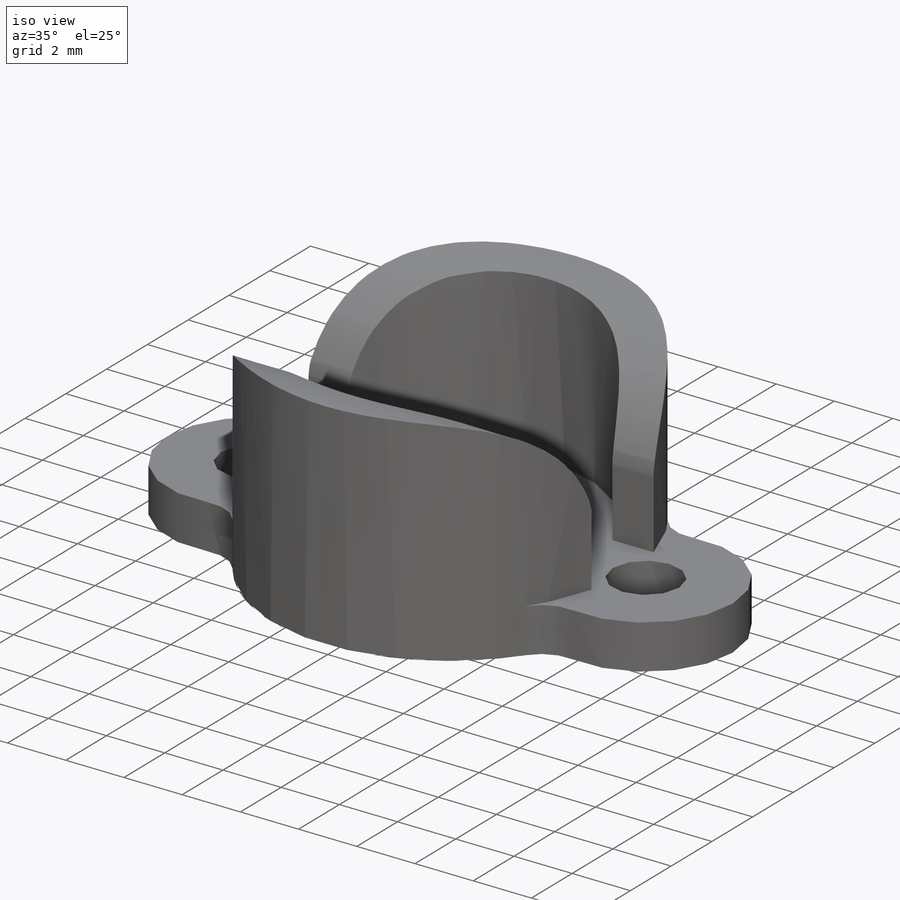
[diagram: iso view]
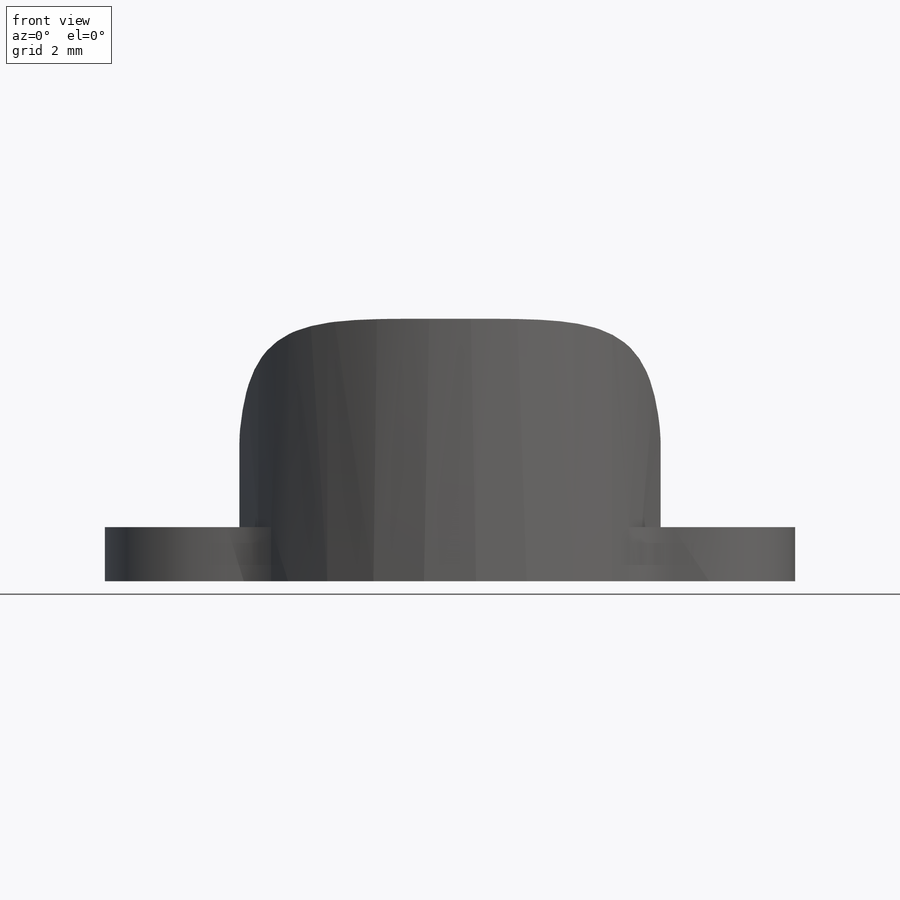
[diagram: front view]
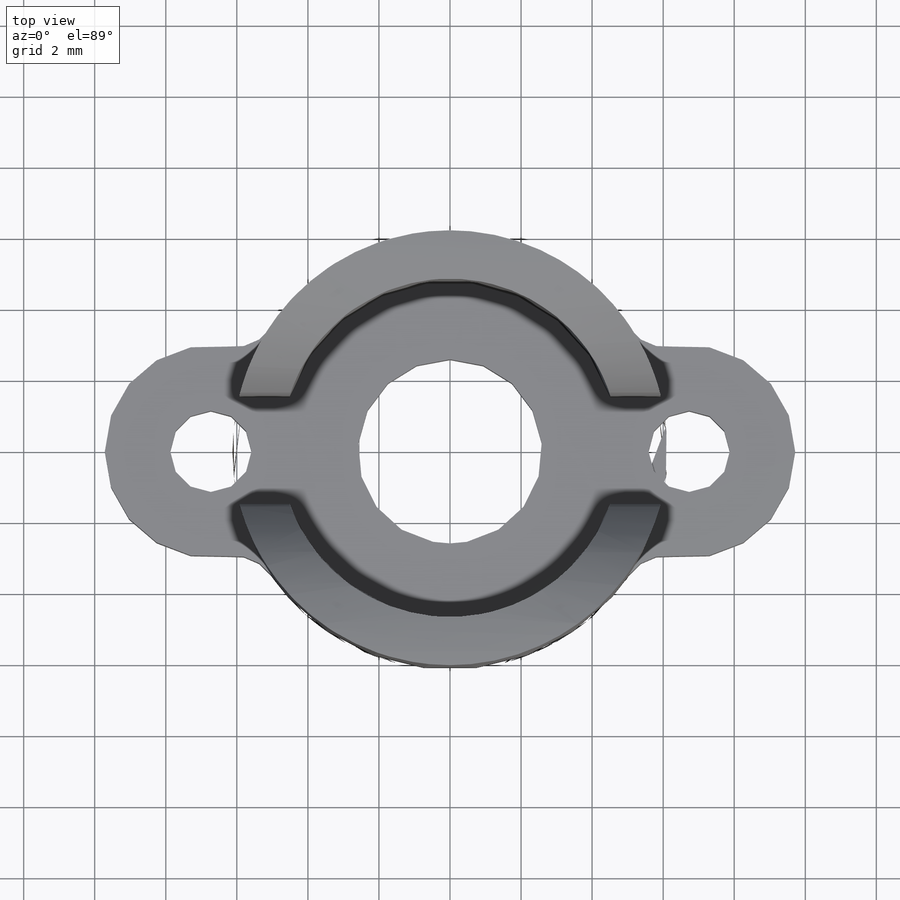
[diagram: top view]
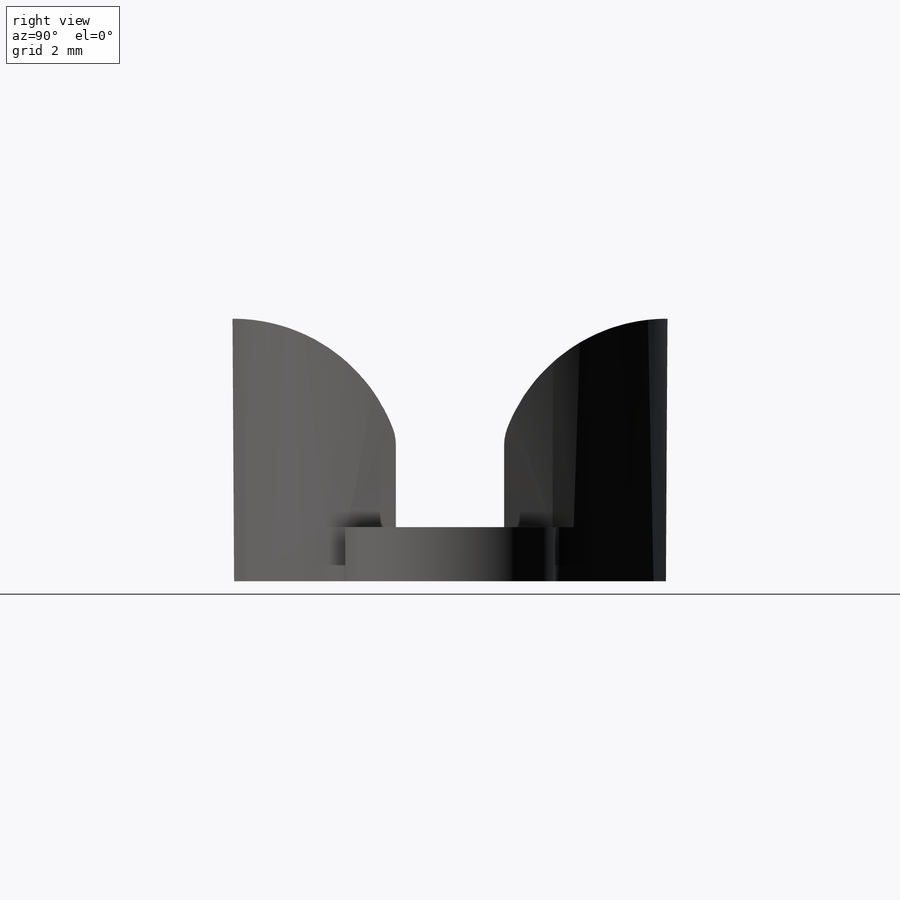
[diagram: right view]
SOLIDWORKS PART (.sldprt)
format: sldprt  version: not decoded by parser v0  size: 239,616 bytes
history: native  units: mm
features: sketch x3, extrude x2, material x1, cut_extrude x1 (+12 scaffold rows collapsed)
feature tree (19):
  scaffold x12  (default folders/planes/origin — collapsed)
  material  "Material <not specified>"
  sketch  "Sketch1"  dims[c1.D1=~5.182412mm c1.D3=2.9845mm c1.D4=6.1214mm c1.D6=2.9845mm c1.D7=2.286mm c1.D9=~6.040664mm c1.D8=6.1214mm c1.D10=1.27mm c1.D2=6.731mm c2.D6=6.731mm c2.D5=2.0 c2.D9=2.0]
  extrude  "Boss-Extrude4"  Depth=1.524mm
  sketch  "Sketch5"  dims[D1=12.2428mm D2=9.525mm]
  extrude  "Boss-Extrude6"  Depth=5.8674mm
  sketch  "Sketch6"  dims[c1.D3=1.27mm c1.D4=~4.820365mm c1.D1=1.524mm c1.D2=2.54mm c2.D3=6.1214mm]
  cut_extrude  "Cut-Extrude1"  [1 undecoded]
decode coverage: 5 of 6 modeling features carry decoded parameters
note: ~ marks probable driven/reference dimensions
note: 1 parameter value undecoded
note: suppression state not decoded; provenance and decode notes live in map.json
